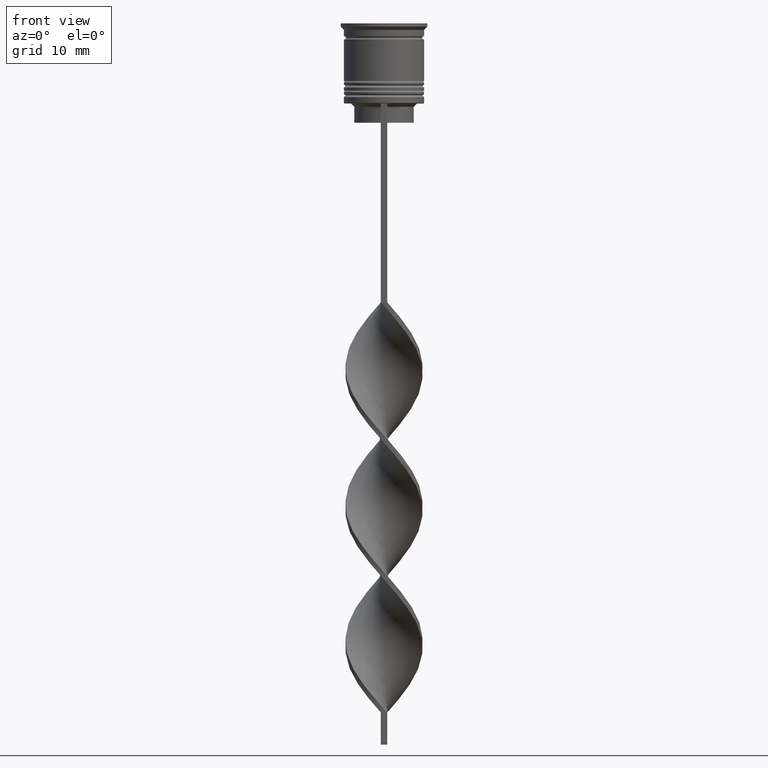
[diagram: clean part render]
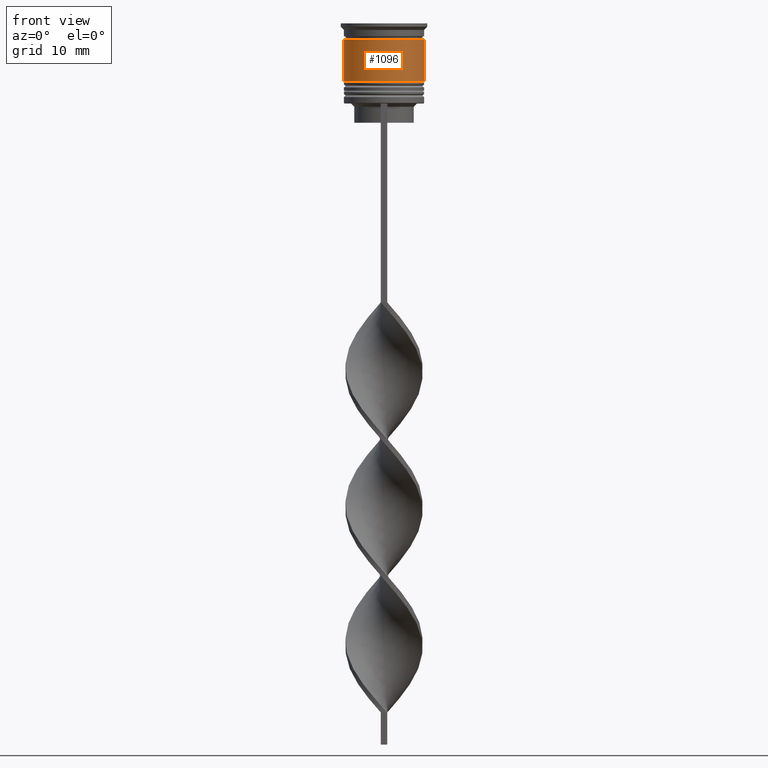
[diagram: same view with one face highlighted and labeled with its STEP entity id]
A machine part, front view. The second image highlights one B-rep face of the part: STEP entity #1096.
In plain terms, the highlighted cylindrical surface (partial cylindrical patch) has radius 6.25 mm, axis along (-0, -0, 1).
Its self-contained STEP definition (entity closure, byte-faithful):
#158 = FACE_OUTER_BOUND ( 'NONE', #3119, .T. ) ;
#162 = DIRECTION ( 'NONE',  ( 1.000000000000000000, 0.000000000000000000, 0.000000000000000000 ) ) ;
#173 = LINE ( 'NONE', #229, #1844 ) ;
#229 = CARTESIAN_POINT ( 'NONE',  ( -6.250000000000000000, 7.654042494670957606E-16, 0.000000000000000000 ) ) ;
#319 = CARTESIAN_POINT ( 'NONE',  ( -6.249999999999999112, 7.654042494670956620E-16, -2.500000000000000444 ) ) ;
#518 = DIRECTION ( 'NONE',  ( -0.000000000000000000, -0.000000000000000000, 1.000000000000000000 ) ) ;
#676 = DIRECTION ( 'NONE',  ( -0.000000000000000000, -0.000000000000000000, 1.000000000000000000 ) ) ;
#699 = AXIS2_PLACEMENT_3D ( 'NONE', #2608, #1729, #162 ) ;
#732 = EDGE_CURVE ( 'NONE', #1243, #3466, #2294, .T. ) ;
#793 = CARTESIAN_POINT ( 'NONE',  ( 0.000000000000000000, 0.000000000000000000, 0.000000000000000000 ) ) ;
#875 = EDGE_CURVE ( 'NONE', #1328, #3466, #2223, .T. ) ;
#926 = CIRCLE ( 'NONE', #2692, 6.250000000000000888 ) ;
#1038 = CARTESIAN_POINT ( 'NONE',  ( -6.250000000000001776, 7.654042494670959579E-16, -9.000000000000001776 ) ) ;
#1096 = ADVANCED_FACE ( 'NONE', ( #158 ), #1866, .T. ) ;
#1119 = CARTESIAN_POINT ( 'NONE',  ( 6.249999999999999112, 0.000000000000000000, -2.500000000000000444 ) ) ;
#1129 = EDGE_CURVE ( 'NONE', #2940, #1243, #926, .T. ) ;
#1243 = VERTEX_POINT ( 'NONE', #1647 ) ;
#1248 = DIRECTION ( 'NONE',  ( -0.000000000000000000, -0.000000000000000000, 1.000000000000000000 ) ) ;
#1328 = VERTEX_POINT ( 'NONE', #319 ) ;
#1490 = CARTESIAN_POINT ( 'NONE',  ( 6.250000000000000000, 0.000000000000000000, 0.000000000000000000 ) ) ;
#1513 = ORIENTED_EDGE ( 'NONE', *, *, #875, .F. ) ;
#1647 = CARTESIAN_POINT ( 'NONE',  ( 6.250000000000000888, 0.000000000000000000, -9.000000000000001776 ) ) ;
#1729 = DIRECTION ( 'NONE',  ( -0.000000000000000000, -0.000000000000000000, 1.000000000000000000 ) ) ;
#1780 = AXIS2_PLACEMENT_3D ( 'NONE', #793, #1248, #2901 ) ;
#1844 = VECTOR ( 'NONE', #518, 1000.000000000000000 ) ;
#1866 = CYLINDRICAL_SURFACE ( 'NONE', #1780, 6.250000000000000000 ) ;
#2223 = CIRCLE ( 'NONE', #699, 6.249999999999999112 ) ;
#2294 = LINE ( 'NONE', #1490, #3125 ) ;
#2344 = ORIENTED_EDGE ( 'NONE', *, *, #2992, .F. ) ;
#2374 = DIRECTION ( 'NONE',  ( -0.000000000000000000, -0.000000000000000000, 1.000000000000000000 ) ) ;
#2608 = CARTESIAN_POINT ( 'NONE',  ( 0.000000000000000000, 0.000000000000000000, -2.500000000000000444 ) ) ;
#2692 = AXIS2_PLACEMENT_3D ( 'NONE', #3176, #2374, #3438 ) ;
#2901 = DIRECTION ( 'NONE',  ( 1.000000000000000000, 0.000000000000000000, 0.000000000000000000 ) ) ;
#2940 = VERTEX_POINT ( 'NONE', #1038 ) ;
#2992 = EDGE_CURVE ( 'NONE', #2940, #1328, #173, .T. ) ;
#3066 = ORIENTED_EDGE ( 'NONE', *, *, #732, .T. ) ;
#3119 = EDGE_LOOP ( 'NONE', ( #2344, #3479, #3066, #1513 ) ) ;
#3125 = VECTOR ( 'NONE', #676, 1000.000000000000000 ) ;
#3176 = CARTESIAN_POINT ( 'NONE',  ( 0.000000000000000000, 0.000000000000000000, -9.000000000000001776 ) ) ;
#3438 = DIRECTION ( 'NONE',  ( 1.000000000000000000, 0.000000000000000000, 0.000000000000000000 ) ) ;
#3466 = VERTEX_POINT ( 'NONE', #1119 ) ;
#3479 = ORIENTED_EDGE ( 'NONE', *, *, #1129, .T. ) ;